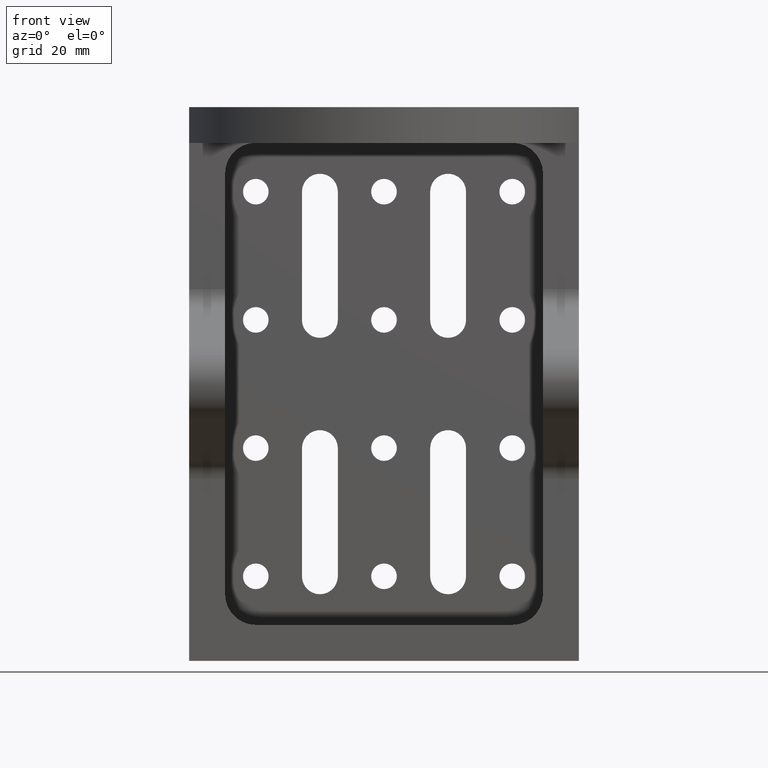
[diagram: clean part render]
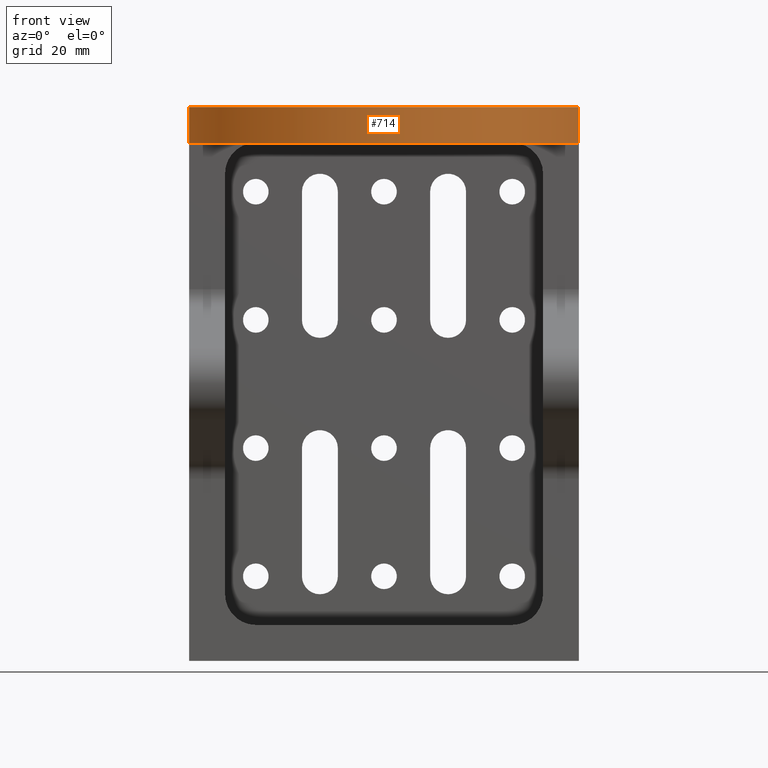
[diagram: same view with one face highlighted and labeled with its STEP entity id]
A machine part, front view. The second image highlights one B-rep face of the part: STEP entity #714.
In plain terms, the highlighted cylindrical surface (partial cylindrical patch) has radius 40 mm, axis along (-0, -0, -1).
Its self-contained STEP definition (entity closure, byte-faithful):
#146 = CIRCLE ( 'NONE', #2060, 39.99999999999996400 ) ;
#169 = AXIS2_PLACEMENT_3D ( 'NONE', #681, #2387, #724 ) ;
#221 = DIRECTION ( 'NONE',  ( 1.000000000000000000, 0.0000000000000000000, 0.0000000000000000000 ) ) ;
#233 = DIRECTION ( 'NONE',  ( -0.0000000000000000000, -0.0000000000000000000, -1.000000000000000000 ) ) ;
#245 = EDGE_CURVE ( 'NONE', #2720, #659, #1687, .T. ) ;
#249 = VECTOR ( 'NONE', #3327, 1000.000000000000000 ) ;
#397 = DIRECTION ( 'NONE',  ( 1.000000000000000000, 0.0000000000000000000, 0.0000000000000000000 ) ) ;
#445 = CYLINDRICAL_SURFACE ( 'NONE', #3442, 39.99999999999996400 ) ;
#473 = DIRECTION ( 'NONE',  ( -0.0000000000000000000, -0.0000000000000000000, 1.000000000000000000 ) ) ;
#516 = VERTEX_POINT ( 'NONE', #1912 ) ;
#600 = EDGE_LOOP ( 'NONE', ( #2545, #807, #2087, #2142, #1982, #918, #3246, #3650 ) ) ;
#604 = DIRECTION ( 'NONE',  ( 0.0000000000000000000, 0.0000000000000000000, -1.000000000000000000 ) ) ;
#620 = CARTESIAN_POINT ( 'NONE',  ( 37.99890439134175300, -26.50332882212207200, 44.00000000000000000 ) ) ;
#659 = VERTEX_POINT ( 'NONE', #1973 ) ;
#666 = CARTESIAN_POINT ( 'NONE',  ( 38.00000000000000700, -26.49999599679667700, 54.00000000000000000 ) ) ;
#671 = CIRCLE ( 'NONE', #1257, 39.99999999999996400 ) ;
#681 = CARTESIAN_POINT ( 'NONE',  ( 0.0000000000000000000, -14.01000000000000500, 46.99999999999943200 ) ) ;
#714 = ADVANCED_FACE ( 'NONE', ( #2477 ), #445, .T. ) ;
#719 = DIRECTION ( 'NONE',  ( -0.0000000000000000000, -0.0000000000000000000, 1.000000000000000000 ) ) ;
#724 = DIRECTION ( 'NONE',  ( 1.000000000000000000, 0.0000000000000000000, 0.0000000000000000000 ) ) ;
#807 = ORIENTED_EDGE ( 'NONE', *, *, #1665, .F. ) ;
#832 = EDGE_CURVE ( 'NONE', #2325, #1394, #671, .T. ) ;
#859 = VERTEX_POINT ( 'NONE', #1998 ) ;
#875 = DIRECTION ( 'NONE',  ( 0.0000000000000000000, 0.0000000000000000000, 1.000000000000000000 ) ) ;
#918 = ORIENTED_EDGE ( 'NONE', *, *, #2251, .F. ) ;
#1007 = LINE ( 'NONE', #2173, #1595 ) ;
#1010 = CARTESIAN_POINT ( 'NONE',  ( -38.00000000000000700, -26.49999599679667700, 54.00000000000000000 ) ) ;
#1047 = VERTEX_POINT ( 'NONE', #620 ) ;
#1136 = EDGE_CURVE ( 'NONE', #2720, #859, #1937, .T. ) ;
#1143 = AXIS2_PLACEMENT_3D ( 'NONE', #1959, #233, #221 ) ;
#1245 = DIRECTION ( 'NONE',  ( -0.0000000000000000000, -0.0000000000000000000, -1.000000000000000000 ) ) ;
#1257 = AXIS2_PLACEMENT_3D ( 'NONE', #1721, #875, #2855 ) ;
#1258 = VECTOR ( 'NONE', #473, 1000.000000000000000 ) ;
#1393 = CARTESIAN_POINT ( 'NONE',  ( 38.00000000000000700, -26.49999599679667700, 44.00000000000000000 ) ) ;
#1394 = VERTEX_POINT ( 'NONE', #666 ) ;
#1431 = DIRECTION ( 'NONE',  ( -0.0000000000000000000, -0.0000000000000000000, -1.000000000000000000 ) ) ;
#1595 = VECTOR ( 'NONE', #719, 1000.000000000000000 ) ;
#1665 = EDGE_CURVE ( 'NONE', #516, #2325, #2283, .T. ) ;
#1687 = LINE ( 'NONE', #3225, #2637 ) ;
#1721 = CARTESIAN_POINT ( 'NONE',  ( 0.0000000000000000000, -14.01000000000000500, 54.00000000000000000 ) ) ;
#1833 = CARTESIAN_POINT ( 'NONE',  ( 0.0000000000000000000, -14.01000000000000500, 44.00000000000000000 ) ) ;
#1912 = CARTESIAN_POINT ( 'NONE',  ( -38.00000000000000700, -26.49999599679667700, 44.00000000000000000 ) ) ;
#1923 = DIRECTION ( 'NONE',  ( -1.000000000000000000, 0.0000000000000000000, 0.0000000000000000000 ) ) ;
#1937 = CIRCLE ( 'NONE', #169, 39.99999999999996400 ) ;
#1959 = CARTESIAN_POINT ( 'NONE',  ( 0.0000000000000000000, -14.01000000000000500, 44.00000000000000000 ) ) ;
#1973 = CARTESIAN_POINT ( 'NONE',  ( -37.99890439134175300, -26.50332882212207200, 44.00000000000000000 ) ) ;
#1982 = ORIENTED_EDGE ( 'NONE', *, *, #1136, .T. ) ;
#1998 = CARTESIAN_POINT ( 'NONE',  ( 37.99890439134175300, -26.50332882212207200, 46.99999999999943200 ) ) ;
#2060 = AXIS2_PLACEMENT_3D ( 'NONE', #1833, #1245, #397 ) ;
#2062 = CARTESIAN_POINT ( 'NONE',  ( -37.99890439134175300, -26.50332882212207200, 46.99999999999943200 ) ) ;
#2087 = ORIENTED_EDGE ( 'NONE', *, *, #3607, .F. ) ;
#2142 = ORIENTED_EDGE ( 'NONE', *, *, #245, .F. ) ;
#2173 = CARTESIAN_POINT ( 'NONE',  ( 37.99890439134175300, -26.50332882212207200, 44.00000000000000000 ) ) ;
#2201 = CARTESIAN_POINT ( 'NONE',  ( 38.00000000000000700, -26.49999599679667700, 44.00000000000000000 ) ) ;
#2251 = EDGE_CURVE ( 'NONE', #1047, #859, #1007, .T. ) ;
#2283 = LINE ( 'NONE', #2759, #249 ) ;
#2325 = VERTEX_POINT ( 'NONE', #1010 ) ;
#2387 = DIRECTION ( 'NONE',  ( 0.0000000000000000000, 0.0000000000000000000, 1.000000000000000000 ) ) ;
#2477 = FACE_OUTER_BOUND ( 'NONE', #600, .T. ) ;
#2502 = EDGE_CURVE ( 'NONE', #3470, #1394, #3059, .T. ) ;
#2545 = ORIENTED_EDGE ( 'NONE', *, *, #832, .F. ) ;
#2637 = VECTOR ( 'NONE', #604, 1000.000000000000000 ) ;
#2720 = VERTEX_POINT ( 'NONE', #2062 ) ;
#2759 = CARTESIAN_POINT ( 'NONE',  ( -38.00000000000000700, -26.49999599679667700, 44.00000000000000000 ) ) ;
#2855 = DIRECTION ( 'NONE',  ( 1.000000000000000000, 0.0000000000000000000, 0.0000000000000000000 ) ) ;
#2899 = CIRCLE ( 'NONE', #1143, 39.99999999999996400 ) ;
#3059 = LINE ( 'NONE', #2201, #1258 ) ;
#3225 = CARTESIAN_POINT ( 'NONE',  ( -37.99890439134175300, -26.50332882212207200, 44.00000000000000000 ) ) ;
#3246 = ORIENTED_EDGE ( 'NONE', *, *, #3408, .F. ) ;
#3327 = DIRECTION ( 'NONE',  ( -0.0000000000000000000, -0.0000000000000000000, 1.000000000000000000 ) ) ;
#3408 = EDGE_CURVE ( 'NONE', #3470, #1047, #2899, .T. ) ;
#3421 = CARTESIAN_POINT ( 'NONE',  ( 0.0000000000000000000, -14.01000000000000500, 54.00000000000000000 ) ) ;
#3442 = AXIS2_PLACEMENT_3D ( 'NONE', #3421, #1431, #1923 ) ;
#3470 = VERTEX_POINT ( 'NONE', #1393 ) ;
#3607 = EDGE_CURVE ( 'NONE', #659, #516, #146, .T. ) ;
#3650 = ORIENTED_EDGE ( 'NONE', *, *, #2502, .T. ) ;